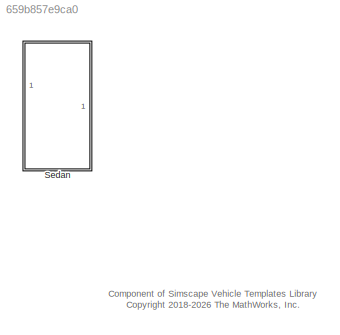
MODEL slx_659b857e9ca0
KIND library
CONFIG SolverName = VariableStepAuto
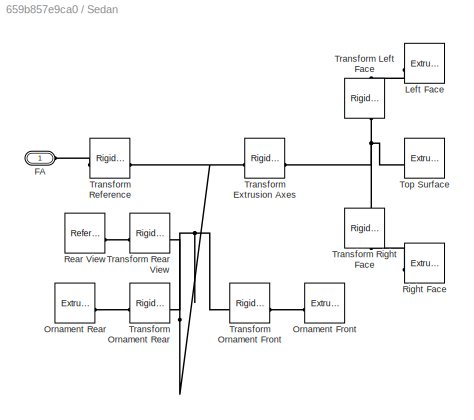
BLOCK [SubSystem] Sedan
BLOCK [PMIOPort] Sedan/FA
  Side = Left
BLOCK [Reference] Sedan/Left Face  REF=sm_lib/Body Elements/Extruded Solid
  NameLocation = top
  SourceBlock = sm_lib/Body Elements/Extruded Solid
  SourceType = Extruded Solid
BLOCK [Reference] Sedan/Ornament Front  REF=sm_lib/Body Elements/Extruded Solid
  SourceBlock = sm_lib/Body Elements/Extruded Solid
  SourceType = Extruded Solid
BLOCK [Reference] Sedan/Ornament Rear  REF=sm_lib/Body Elements/Extruded Solid
  SourceBlock = sm_lib/Body Elements/Extruded Solid
  SourceType = Extruded Solid
BLOCK [Reference] Sedan/Rear View  REF=sm_lib/Frames and
Transforms/Reference
Frame
  SourceBlock = sm_lib/Frames and\nTransforms/Reference\nFrame
  SourceType = Reference\nFrame
BLOCK [Reference] Sedan/Right Face  REF=sm_lib/Body Elements/Extruded Solid
  SourceBlock = sm_lib/Body Elements/Extruded Solid
  SourceType = Extruded Solid
BLOCK [Reference] Sedan/Top Surface  REF=sm_lib/Body Elements/Extruded Solid
  SourceBlock = sm_lib/Body Elements/Extruded Solid
  SourceType = Extruded Solid
BLOCK [Reference] Sedan/Transform Extrusion Axes  REF=sm_lib/Frames and
Transforms/Rigid
Transform
  SourceBlock = sm_lib/Frames and\nTransforms/Rigid\nTransform
  SourceType = Rigid\nTransform
BLOCK [Reference] Sedan/Transform Left Face  REF=sm_lib/Frames and
Transforms/Rigid
Transform
  NameLocation = left
  SourceBlock = sm_lib/Frames and\nTransforms/Rigid\nTransform
  SourceType = Rigid\nTransform
BLOCK [Reference] Sedan/Transform Ornament Front  REF=sm_lib/Frames and
Transforms/Rigid
Transform
  SourceBlock = sm_lib/Frames and\nTransforms/Rigid\nTransform
  SourceType = Rigid\nTransform
BLOCK [Reference] Sedan/Transform Ornament Rear  REF=sm_lib/Frames and
Transforms/Rigid
Transform
  SourceBlock = sm_lib/Frames and\nTransforms/Rigid\nTransform
  SourceType = Rigid\nTransform
BLOCK [Reference] Sedan/Transform Rear View  REF=sm_lib/Frames and
Transforms/Rigid
Transform
  SourceBlock = sm_lib/Frames and\nTransforms/Rigid\nTransform
  SourceType = Rigid\nTransform
BLOCK [Reference] Sedan/Transform Reference  REF=sm_lib/Frames and
Transforms/Rigid
Transform
  SourceBlock = sm_lib/Frames and\nTransforms/Rigid\nTransform
  SourceType = Rigid\nTransform
BLOCK [Reference] Sedan/Transform Right Face  REF=sm_lib/Frames and
Transforms/Rigid
Transform
  NameLocation = left
  SourceBlock = sm_lib/Frames and\nTransforms/Rigid\nTransform
  SourceType = Rigid\nTransform
ANNOTATION (root): Component of Simscape Vehicle Templates Library <copyright redacted>
PLINE Sedan/FA:RConn1 -- Sedan/Transform Reference:LConn1
PLINE Sedan/Left Face:RConn1 -- Sedan/Transform Left Face:RConn1
PLINE Sedan/Ornament Front:RConn1 -- Sedan/Transform Ornament Front:RConn1
PLINE Sedan/Ornament Rear:RConn1 -- Sedan/Transform Ornament Rear:RConn1
PLINE Sedan/Rear View:RConn1 -- Sedan/Transform Rear View:RConn1
PLINE Sedan/Right Face:RConn1 -- Sedan/Transform Right Face:RConn1
PNET net1: Sedan/Top Surface:RConn1 -- Sedan/Transform Extrusion Axes:RConn1 -- Sedan/Transform Left Face:LConn1 -- Sedan/Transform Right Face:LConn1
PNET net2: Sedan/Transform Extrusion Axes:LConn1 -- Sedan/Transform Ornament Front:LConn1 -- Sedan/Transform Ornament Rear:LConn1 -- Sedan/Transform Rear View:LConn1 -- Sedan/Transform Reference:RConn1
note: PNET lines group multi-terminal physical nets as a canonical sorted terminal list (undirected conserving connections); 2-terminal nets keep the pairwise PLINE form
